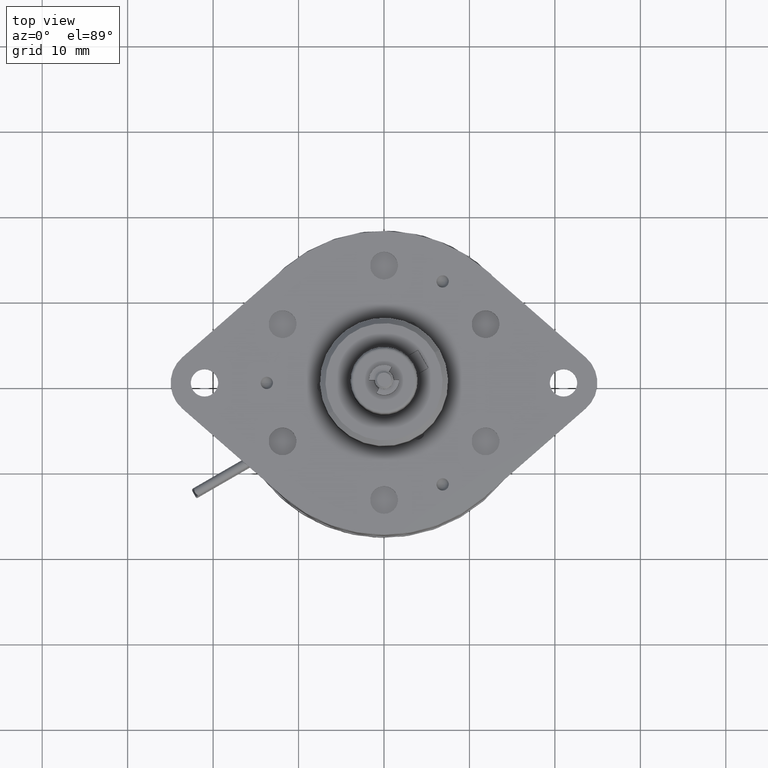
[diagram: clean part render]
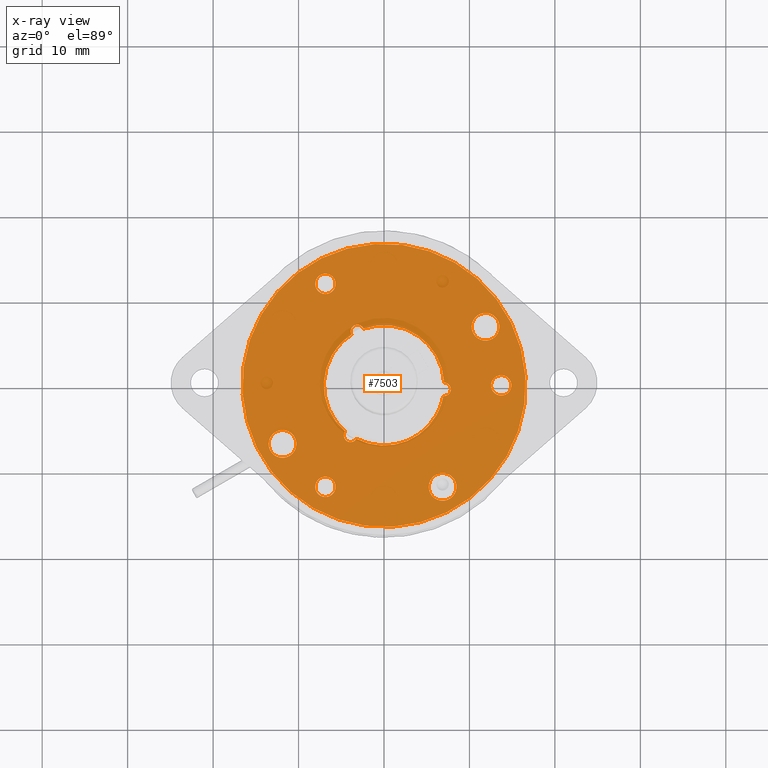
[diagram: x-ray — body ghosted, one internal face saturated and labeled with its STEP entity id]
A machine part, top view, then the same camera in x-ray: the body is ghosted and one INTERNAL B-rep face — a face not visible from any outside direction — is saturated and labeled: STEP entity #7503.
In plain terms, the highlighted planar face has unit normal (0, 0, -1).
Its self-contained STEP definition (entity closure, byte-faithful):
#6927=CARTESIAN_POINT('',(0.E0,0.E0,0.E0));
#6928=DIRECTION('',(0.E0,0.E0,1.E0));
#6929=DIRECTION('',(1.E0,0.E0,0.E0));
#6930=AXIS2_PLACEMENT_3D('',#6927,#6928,#6929);
#6932=CARTESIAN_POINT('',(0.E0,0.E0,0.E0));
#6933=DIRECTION('',(0.E0,0.E0,1.E0));
#6934=DIRECTION('',(-1.E0,0.E0,0.E0));
#6935=AXIS2_PLACEMENT_3D('',#6932,#6933,#6934);
#6937=CARTESIAN_POINT('',(-2.7E-1,4.676537180436E-1,0.E0));
#6938=DIRECTION('',(0.E0,0.E0,-1.E0));
#6939=DIRECTION('',(1.E0,0.E0,0.E0));
#6940=AXIS2_PLACEMENT_3D('',#6937,#6938,#6939);
#6942=CARTESIAN_POINT('',(-2.7E-1,4.676537180436E-1,0.E0));
#6943=DIRECTION('',(0.E0,0.E0,-1.E0));
#6944=DIRECTION('',(-1.E0,0.E0,0.E0));
#6945=AXIS2_PLACEMENT_3D('',#6942,#6943,#6944);
#6947=CARTESIAN_POINT('',(-4.676537180436E-1,-2.7E-1,0.E0));
#6948=DIRECTION('',(0.E0,0.E0,-1.E0));
#6949=DIRECTION('',(1.E0,0.E0,0.E0));
#6950=AXIS2_PLACEMENT_3D('',#6947,#6948,#6949);
#6952=CARTESIAN_POINT('',(-4.676537180436E-1,-2.7E-1,0.E0));
#6953=DIRECTION('',(0.E0,0.E0,-1.E0));
#6954=DIRECTION('',(-1.E0,0.E0,0.E0));
#6955=AXIS2_PLACEMENT_3D('',#6952,#6953,#6954);
#6957=CARTESIAN_POINT('',(2.7E-1,-4.676537180436E-1,0.E0));
#6958=DIRECTION('',(0.E0,0.E0,-1.E0));
#6959=DIRECTION('',(1.E0,0.E0,0.E0));
#6960=AXIS2_PLACEMENT_3D('',#6957,#6958,#6959);
#6962=CARTESIAN_POINT('',(2.7E-1,-4.676537180436E-1,0.E0));
#6963=DIRECTION('',(0.E0,0.E0,-1.E0));
#6964=DIRECTION('',(-1.E0,0.E0,0.E0));
#6965=AXIS2_PLACEMENT_3D('',#6962,#6963,#6964);
#6967=CARTESIAN_POINT('',(0.E0,0.E0,0.E0));
#6968=DIRECTION('',(0.E0,0.E0,-1.E0));
#6969=DIRECTION('',(-4.630347241166E-2,-9.989274190063E-1,0.E0));
#6970=AXIS2_PLACEMENT_3D('',#6967,#6968,#6969);
#6972=CARTESIAN_POINT('',(0.E0,0.E0,0.E0));
#6973=DIRECTION('',(0.E0,0.E0,-1.E0));
#6974=DIRECTION('',(-1.E0,0.E0,0.E0));
#6975=AXIS2_PLACEMENT_3D('',#6972,#6973,#6974);
#6977=CARTESIAN_POINT('',(-2.488821857753E-1,1.227351115358E-1,0.E0));
#6978=DIRECTION('',(0.E0,0.E0,-1.E0));
#6979=DIRECTION('',(-3.915026135969E-1,-9.201769957713E-1,0.E0));
#6980=AXIS2_PLACEMENT_3D('',#6977,#6978,#6979);
#6982=CARTESIAN_POINT('',(-2.488821857753E-1,1.227351115358E-1,0.E0));
#6983=DIRECTION('',(0.E0,0.E0,-1.E0));
#6984=DIRECTION('',(-1.E0,0.E0,0.E0));
#6985=AXIS2_PLACEMENT_3D('',#6982,#6983,#6984);
#6987=CARTESIAN_POINT('',(-2.488821857753E-1,1.227351115358E-1,0.E0));
#6988=DIRECTION('',(0.E0,0.E0,-1.E0));
#6989=DIRECTION('',(3.915026135966E-1,9.201769957715E-1,0.E0));
#6990=AXIS2_PLACEMENT_3D('',#6987,#6988,#6989);
#6992=CARTESIAN_POINT('',(0.E0,0.E0,0.E0));
#6993=DIRECTION('',(0.E0,0.E0,-1.E0));
#6994=DIRECTION('',(-8.419447851904E-1,5.395636928952E-1,0.E0));
#6995=AXIS2_PLACEMENT_3D('',#6992,#6993,#6994);
#6997=CARTESIAN_POINT('',(2.307328174140E-1,1.541707396629E-1,0.E0));
#6998=DIRECTION('',(0.E0,0.E0,-1.E0));
#6999=DIRECTION('',(-6.011453475179E-1,7.991397069083E-1,0.E0));
#7000=AXIS2_PLACEMENT_3D('',#6997,#6998,#6999);
#7002=CARTESIAN_POINT('',(2.307328174140E-1,1.541707396629E-1,0.E0));
#7003=DIRECTION('',(0.E0,0.E0,-1.E0));
#7004=DIRECTION('',(1.E0,0.E0,0.E0));
#7005=AXIS2_PLACEMENT_3D('',#7002,#7003,#7004);
#7007=CARTESIAN_POINT('',(2.307328174140E-1,1.541707396629E-1,0.E0));
#7008=DIRECTION('',(0.E0,0.E0,-1.E0));
#7009=DIRECTION('',(6.011453475179E-1,-7.991397069084E-1,0.E0));
#7010=AXIS2_PLACEMENT_3D('',#7007,#7008,#7009);
#7012=CARTESIAN_POINT('',(0.E0,0.E0,0.E0));
#7013=DIRECTION('',(0.E0,0.E0,-1.E0));
#7014=DIRECTION('',(8.882482576022E-1,4.593637261111E-1,0.E0));
#7015=AXIS2_PLACEMENT_3D('',#7012,#7013,#7014);
#7017=CARTESIAN_POINT('',(0.E0,0.E0,0.E0));
#7018=DIRECTION('',(0.E0,0.E0,-1.E0));
#7019=DIRECTION('',(1.E0,0.E0,0.E0));
#7020=AXIS2_PLACEMENT_3D('',#7017,#7018,#7019);
#7022=CARTESIAN_POINT('',(1.814936836136E-2,-2.769058511987E-1,0.E0));
#7023=DIRECTION('',(0.E0,0.E0,-1.E0));
#7024=DIRECTION('',(9.926479611145E-1,1.210372888627E-1,0.E0));
#7025=AXIS2_PLACEMENT_3D('',#7022,#7023,#7024);
#7027=CARTESIAN_POINT('',(1.814936836136E-2,-2.769058511987E-1,0.E0));
#7028=DIRECTION('',(0.E0,0.E0,-1.E0));
#7029=DIRECTION('',(1.E0,0.E0,0.E0));
#7030=AXIS2_PLACEMENT_3D('',#7027,#7028,#7029);
#7032=CARTESIAN_POINT('',(1.814936836136E-2,-2.769058511987E-1,0.E0));
#7033=DIRECTION('',(0.E0,0.E0,-1.E0));
#7034=DIRECTION('',(-9.926479611144E-1,-1.210372888631E-1,0.E0));
#7035=AXIS2_PLACEMENT_3D('',#7032,#7033,#7034);
#7037=CARTESIAN_POINT('',(4.676537180436E-1,2.7E-1,0.E0));
#7038=DIRECTION('',(0.E0,0.E0,-1.E0));
#7039=DIRECTION('',(0.E0,-1.E0,0.E0));
#7040=AXIS2_PLACEMENT_3D('',#7037,#7038,#7039);
#7042=CARTESIAN_POINT('',(4.676537180436E-1,2.7E-1,0.E0));
#7043=DIRECTION('',(0.E0,0.E0,-1.E0));
#7044=DIRECTION('',(0.E0,1.E0,0.E0));
#7045=AXIS2_PLACEMENT_3D('',#7042,#7043,#7044);
#7047=CARTESIAN_POINT('',(-4.676537180436E-1,2.7E-1,0.E0));
#7048=DIRECTION('',(0.E0,0.E0,-1.E0));
#7049=DIRECTION('',(0.E0,-1.E0,0.E0));
#7050=AXIS2_PLACEMENT_3D('',#7047,#7048,#7049);
#7052=CARTESIAN_POINT('',(-4.676537180436E-1,2.7E-1,0.E0));
#7053=DIRECTION('',(0.E0,0.E0,-1.E0));
#7054=DIRECTION('',(0.E0,1.E0,0.E0));
#7055=AXIS2_PLACEMENT_3D('',#7052,#7053,#7054);
#7057=CARTESIAN_POINT('',(0.E0,-5.4E-1,0.E0));
#7058=DIRECTION('',(0.E0,0.E0,-1.E0));
#7059=DIRECTION('',(0.E0,-1.E0,0.E0));
#7060=AXIS2_PLACEMENT_3D('',#7057,#7058,#7059);
#7062=CARTESIAN_POINT('',(0.E0,-5.4E-1,0.E0));
#7063=DIRECTION('',(0.E0,0.E0,-1.E0));
#7064=DIRECTION('',(0.E0,1.E0,0.E0));
#7065=AXIS2_PLACEMENT_3D('',#7062,#7063,#7064);
#7308=CARTESIAN_POINT('',(6.525E-1,0.E0,0.E0));
#7309=CARTESIAN_POINT('',(-6.525E-1,0.E0,0.E0));
#7310=VERTEX_POINT('',#7308);
#7311=VERTEX_POINT('',#7309);
#7312=CARTESIAN_POINT('',(-2.0595E-1,4.676537180436E-1,0.E0));
#7313=CARTESIAN_POINT('',(-3.3405E-1,4.676537180436E-1,0.E0));
#7314=VERTEX_POINT('',#7312);
#7315=VERTEX_POINT('',#7313);
#7316=CARTESIAN_POINT('',(-4.036037180436E-1,-2.7E-1,0.E0));
#7317=CARTESIAN_POINT('',(-5.317037180436E-1,-2.7E-1,0.E0));
#7318=VERTEX_POINT('',#7316);
#7319=VERTEX_POINT('',#7317);
#7320=CARTESIAN_POINT('',(3.3405E-1,-4.676537180436E-1,0.E0));
#7321=CARTESIAN_POINT('',(2.0595E-1,-4.676537180436E-1,0.E0));
#7322=VERTEX_POINT('',#7320);
#7323=VERTEX_POINT('',#7321);
#7324=CARTESIAN_POINT('',(-1.284921359423E-2,-2.772023587743E-1,0.E0));
#7325=CARTESIAN_POINT('',(-2.775E-1,0.E0,0.E0));
#7326=VERTEX_POINT('',#7324);
#7327=VERTEX_POINT('',#7325);
#7328=CARTESIAN_POINT('',(-2.610187667968E-1,9.420962466689E-2,0.E0));
#7329=VERTEX_POINT('',#7328);
#7330=CARTESIAN_POINT('',(-2.798821857753E-1,1.227351115358E-1,0.E0));
#7331=VERTEX_POINT('',#7330);
#7332=CARTESIAN_POINT('',(-2.367456047538E-1,1.512605984047E-1,0.E0));
#7333=VERTEX_POINT('',#7332);
#7334=CARTESIAN_POINT('',(-2.336396778903E-1,1.497289247784E-1,0.E0));
#7335=VERTEX_POINT('',#7334);
#7336=CARTESIAN_POINT('',(2.120973116409E-1,1.789440705771E-1,0.E0));
#7337=VERTEX_POINT('',#7336);
#7338=CARTESIAN_POINT('',(2.617328174140E-1,1.541707396629E-1,0.E0));
#7339=VERTEX_POINT('',#7338);
#7340=CARTESIAN_POINT('',(2.493683231871E-1,1.293974087487E-1,0.E0));
#7341=VERTEX_POINT('',#7340);
#7342=CARTESIAN_POINT('',(2.464888914846E-1,1.274734339958E-1,0.E0));
#7343=VERTEX_POINT('',#7342);
#7344=CARTESIAN_POINT('',(2.775E-1,0.E0,0.E0));
#7345=VERTEX_POINT('',#7344);
#7346=CARTESIAN_POINT('',(4.892145515591E-2,-2.731536952440E-1,0.E0));
#7347=VERTEX_POINT('',#7346);
#7348=CARTESIAN_POINT('',(4.914936836136E-2,-2.769058511987E-1,0.E0));
#7349=VERTEX_POINT('',#7348);
#7350=CARTESIAN_POINT('',(-1.262271843319E-2,-2.806580071535E-1,0.E0));
#7351=VERTEX_POINT('',#7350);
#7352=CARTESIAN_POINT('',(4.676537180436E-1,2.23E-1,0.E0));
#7353=CARTESIAN_POINT('',(4.676537180436E-1,3.17E-1,0.E0));
#7354=VERTEX_POINT('',#7352);
#7355=VERTEX_POINT('',#7353);
#7356=CARTESIAN_POINT('',(-4.676537180436E-1,2.23E-1,0.E0));
#7357=CARTESIAN_POINT('',(-4.676537180436E-1,3.17E-1,0.E0));
#7358=VERTEX_POINT('',#7356);
#7359=VERTEX_POINT('',#7357);
#7360=CARTESIAN_POINT('',(0.E0,-5.87E-1,0.E0));
#7361=CARTESIAN_POINT('',(0.E0,-4.93E-1,0.E0));
#7362=VERTEX_POINT('',#7360);
#7363=VERTEX_POINT('',#7361);
#7426=CARTESIAN_POINT('',(0.E0,0.E0,0.E0));
#7427=DIRECTION('',(0.E0,0.E0,1.E0));
#7428=DIRECTION('',(1.E0,0.E0,0.E0));
#7429=AXIS2_PLACEMENT_3D('',#7426,#7427,#7428);
#7430=PLANE('',#7429);
#7432=ORIENTED_EDGE('',*,*,#7431,.T.);
#7434=ORIENTED_EDGE('',*,*,#7433,.T.);
#7435=EDGE_LOOP('',(#7432,#7434));
#7436=FACE_OUTER_BOUND('',#7435,.F.);
#7438=ORIENTED_EDGE('',*,*,#7437,.T.);
#7440=ORIENTED_EDGE('',*,*,#7439,.T.);
#7441=EDGE_LOOP('',(#7438,#7440));
#7442=FACE_BOUND('',#7441,.F.);
#7444=ORIENTED_EDGE('',*,*,#7443,.T.);
#7446=ORIENTED_EDGE('',*,*,#7445,.T.);
#7447=EDGE_LOOP('',(#7444,#7446));
#7448=FACE_BOUND('',#7447,.F.);
#7450=ORIENTED_EDGE('',*,*,#7449,.T.);
#7452=ORIENTED_EDGE('',*,*,#7451,.T.);
#7453=EDGE_LOOP('',(#7450,#7452));
#7454=FACE_BOUND('',#7453,.F.);
#7456=ORIENTED_EDGE('',*,*,#7455,.T.);
#7458=ORIENTED_EDGE('',*,*,#7457,.T.);
#7460=ORIENTED_EDGE('',*,*,#7459,.T.);
#7462=ORIENTED_EDGE('',*,*,#7461,.T.);
#7464=ORIENTED_EDGE('',*,*,#7463,.T.);
#7466=ORIENTED_EDGE('',*,*,#7465,.T.);
#7468=ORIENTED_EDGE('',*,*,#7467,.T.);
#7470=ORIENTED_EDGE('',*,*,#7469,.T.);
#7472=ORIENTED_EDGE('',*,*,#7471,.T.);
#7474=ORIENTED_EDGE('',*,*,#7473,.T.);
#7476=ORIENTED_EDGE('',*,*,#7475,.T.);
#7478=ORIENTED_EDGE('',*,*,#7477,.T.);
#7480=ORIENTED_EDGE('',*,*,#7479,.T.);
#7482=ORIENTED_EDGE('',*,*,#7481,.T.);
#7483=EDGE_LOOP('',(#7456,#7458,#7460,#7462,#7464,#7466,#7468,#7470,#7472,#7474,
#7476,#7478,#7480,#7482));
#7484=FACE_BOUND('',#7483,.F.);
#7486=ORIENTED_EDGE('',*,*,#7485,.T.);
#7488=ORIENTED_EDGE('',*,*,#7487,.T.);
#7489=EDGE_LOOP('',(#7486,#7488));
#7490=FACE_BOUND('',#7489,.F.);
#7492=ORIENTED_EDGE('',*,*,#7491,.T.);
#7494=ORIENTED_EDGE('',*,*,#7493,.T.);
#7495=EDGE_LOOP('',(#7492,#7494));
#7496=FACE_BOUND('',#7495,.F.);
#7498=ORIENTED_EDGE('',*,*,#7497,.T.);
#7500=ORIENTED_EDGE('',*,*,#7499,.T.);
#7501=EDGE_LOOP('',(#7498,#7500));
#7502=FACE_BOUND('',#7501,.F.);
#7503=ADVANCED_FACE('',(#7436,#7442,#7448,#7454,#7484,#7490,#7496,#7502),#7430,
.F.);
#6931=CIRCLE('',#6930,6.525E-1);
#6936=CIRCLE('',#6935,6.525E-1);
#6941=CIRCLE('',#6940,6.405E-2);
#6946=CIRCLE('',#6945,6.405E-2);
#6951=CIRCLE('',#6950,6.405E-2);
#6956=CIRCLE('',#6955,6.405E-2);
#6961=CIRCLE('',#6960,6.405E-2);
#6966=CIRCLE('',#6965,6.405E-2);
#6971=CIRCLE('',#6970,2.775E-1);
#6976=CIRCLE('',#6975,2.775E-1);
#6981=CIRCLE('',#6980,3.1E-2);
#6986=CIRCLE('',#6985,3.1E-2);
#6991=CIRCLE('',#6990,3.1E-2);
#6996=CIRCLE('',#6995,2.775E-1);
#7001=CIRCLE('',#7000,3.1E-2);
#7006=CIRCLE('',#7005,3.1E-2);
#7011=CIRCLE('',#7010,3.1E-2);
#7016=CIRCLE('',#7015,2.775E-1);
#7021=CIRCLE('',#7020,2.775E-1);
#7026=CIRCLE('',#7025,3.1E-2);
#7031=CIRCLE('',#7030,3.1E-2);
#7036=CIRCLE('',#7035,3.1E-2);
#7041=CIRCLE('',#7040,4.7E-2);
#7046=CIRCLE('',#7045,4.7E-2);
#7051=CIRCLE('',#7050,4.7E-2);
#7056=CIRCLE('',#7055,4.7E-2);
#7061=CIRCLE('',#7060,4.7E-2);
#7066=CIRCLE('',#7065,4.7E-2);
#7431=EDGE_CURVE('',#7310,#7311,#6931,.T.);
#7433=EDGE_CURVE('',#7311,#7310,#6936,.T.);
#7437=EDGE_CURVE('',#7314,#7315,#6941,.T.);
#7439=EDGE_CURVE('',#7315,#7314,#6946,.T.);
#7443=EDGE_CURVE('',#7318,#7319,#6951,.T.);
#7445=EDGE_CURVE('',#7319,#7318,#6956,.T.);
#7449=EDGE_CURVE('',#7322,#7323,#6961,.T.);
#7451=EDGE_CURVE('',#7323,#7322,#6966,.T.);
#7455=EDGE_CURVE('',#7326,#7327,#6971,.T.);
#7457=EDGE_CURVE('',#7327,#7329,#6976,.T.);
#7459=EDGE_CURVE('',#7329,#7331,#6981,.T.);
#7461=EDGE_CURVE('',#7331,#7333,#6986,.T.);
#7463=EDGE_CURVE('',#7333,#7335,#6991,.T.);
#7465=EDGE_CURVE('',#7335,#7337,#6996,.T.);
#7467=EDGE_CURVE('',#7337,#7339,#7001,.T.);
#7469=EDGE_CURVE('',#7339,#7341,#7006,.T.);
#7471=EDGE_CURVE('',#7341,#7343,#7011,.T.);
#7473=EDGE_CURVE('',#7343,#7345,#7016,.T.);
#7475=EDGE_CURVE('',#7345,#7347,#7021,.T.);
#7477=EDGE_CURVE('',#7347,#7349,#7026,.T.);
#7479=EDGE_CURVE('',#7349,#7351,#7031,.T.);
#7481=EDGE_CURVE('',#7351,#7326,#7036,.T.);
#7485=EDGE_CURVE('',#7354,#7355,#7041,.T.);
#7487=EDGE_CURVE('',#7355,#7354,#7046,.T.);
#7491=EDGE_CURVE('',#7358,#7359,#7051,.T.);
#7493=EDGE_CURVE('',#7359,#7358,#7056,.T.);
#7497=EDGE_CURVE('',#7362,#7363,#7061,.T.);
#7499=EDGE_CURVE('',#7363,#7362,#7066,.T.);